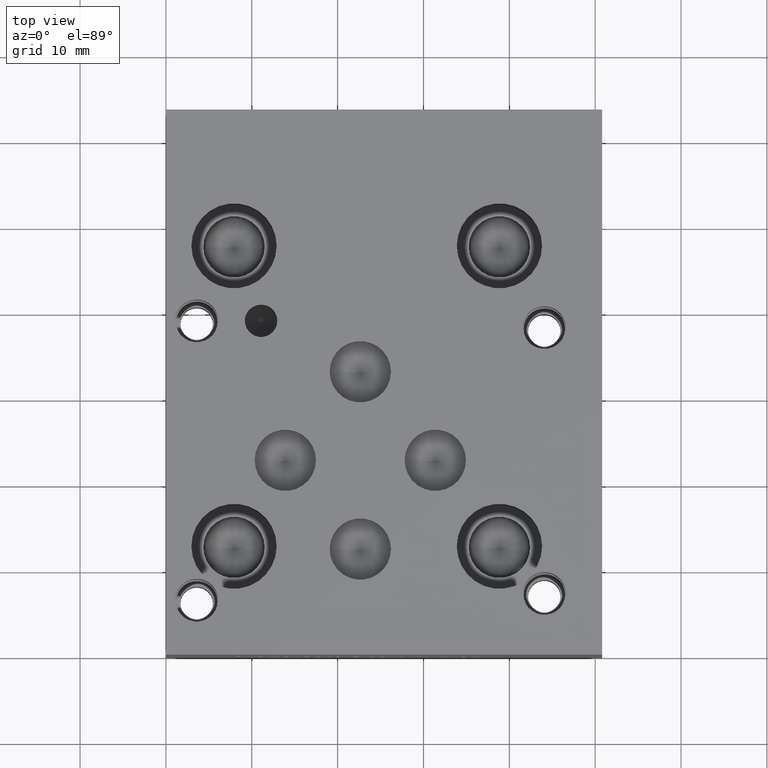
[diagram: clean part render]
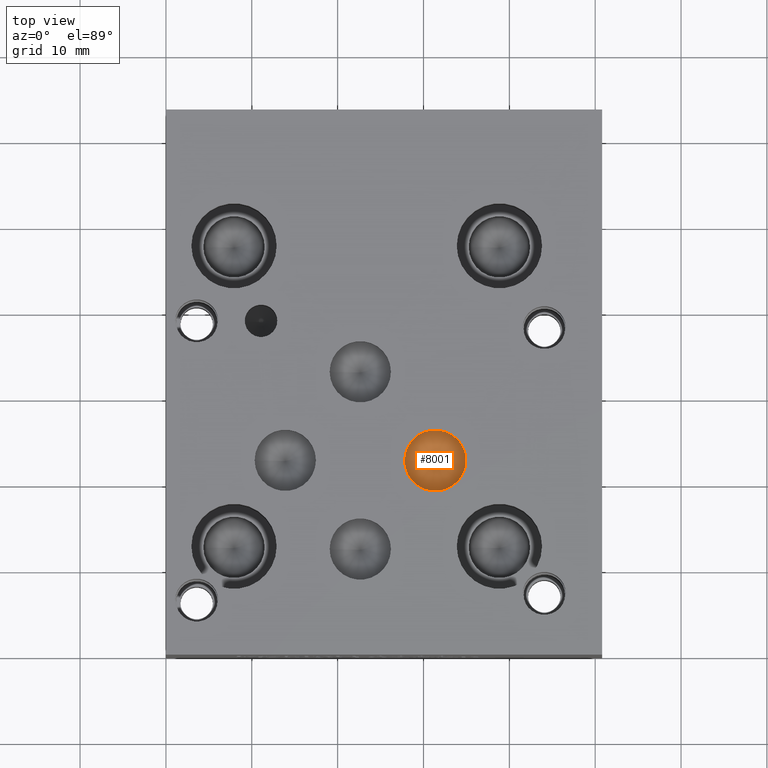
[diagram: same view with one face highlighted and labeled with its STEP entity id]
A machine part, top view. The second image highlights one B-rep face of the part: STEP entity #8001.
In plain terms, the highlighted conical surface has half-angle 60 deg.
Its self-contained STEP definition (entity closure, byte-faithful):
#28=CONICAL_SURFACE('',#8411,1.78435,1.0471975511966);
#117=CIRCLE('',#8412,3.5687);
#118=CIRCLE('',#8413,3.5687);
#920=FACE_OUTER_BOUND('',#1363,.T.);
#1363=EDGE_LOOP('',(#6845,#6846,#6847,#6848));
#2181=LINE('',#13443,#2966);
#2966=VECTOR('',#9980,1.78435);
#3692=VERTEX_POINT('',#13439);
#3693=VERTEX_POINT('',#13440);
#3694=VERTEX_POINT('',#13442);
#4768=EDGE_CURVE('',#3692,#3693,#117,.T.);
#4769=EDGE_CURVE('',#3693,#3694,#2181,.T.);
#4770=EDGE_CURVE('',#3693,#3692,#118,.T.);
#6845=ORIENTED_EDGE('',*,*,#4768,.T.);
#6846=ORIENTED_EDGE('',*,*,#4769,.T.);
#6847=ORIENTED_EDGE('',*,*,#4769,.F.);
#6848=ORIENTED_EDGE('',*,*,#4770,.T.);
#8001=ADVANCED_FACE('',(#920),#28,.F.);
#8411=AXIS2_PLACEMENT_3D('',#13438,#9976,#9977);
#8412=AXIS2_PLACEMENT_3D('',#13441,#9978,#9979);
#8413=AXIS2_PLACEMENT_3D('',#13444,#9981,#9982);
#9976=DIRECTION('center_axis',(0.,0.,1.));
#9977=DIRECTION('ref_axis',(1.,0.,0.));
#9978=DIRECTION('center_axis',(0.,0.,1.));
#9979=DIRECTION('ref_axis',(1.,0.,0.));
#9980=DIRECTION('',(0.866025403784439,1.06057523872491E-16,-0.5));
#9981=DIRECTION('center_axis',(0.,0.,1.));
#9982=DIRECTION('ref_axis',(1.,0.,0.));
#13438=CARTESIAN_POINT('Origin',(31.369,22.6314,22.3094150471715));
#13439=CARTESIAN_POINT('',(34.9377,22.6314,23.33961));
#13440=CARTESIAN_POINT('',(27.8003,22.6314,23.33961));
#13441=CARTESIAN_POINT('Origin',(31.369,22.6314,23.33961));
#13442=CARTESIAN_POINT('',(31.369,22.6314,21.279220094343));
#13443=CARTESIAN_POINT('',(29.58465,22.6314,22.3094150471715));
#13444=CARTESIAN_POINT('Origin',(31.369,22.6314,23.33961));